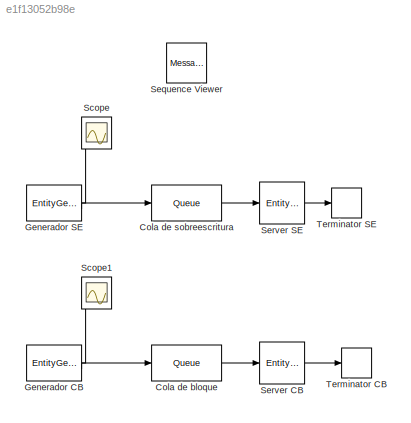
MODEL slx_e1f13052b98e
KIND model
CONFIG AbsTol = auto
CONFIG EnableMultiTasking = off
CONFIG FixedStep = auto
CONFIG MaxStep = auto
CONFIG MinStep = auto
CONFIG RelTol = 1e-3
CONFIG SampleTimeConstraint = Unconstrained
CONFIG SolverName = VariableStepAuto
CONFIG StartTime = 0.0
CONFIG StopTime = 30
BLOCK [Queue] Cola de bloque
  Capacity = 10
  InputPortMap = u0
  InputPortMessageModes = m
  OutputPortMap = o5
  OutputPortMessageModes = m
BLOCK [Queue] Cola de sobreescritura
  Capacity = 10
  InputPortMap = u0
  InputPortMessageModes = m
  OutputPortMap = o5
  OutputPortMessageModes = m
  OverwriteOldest = on
BLOCK [EntityGenerator] Generador CB
  AttributeName = entity
  DataInitialValue = 1
  EntityTypeName = Entity
  GenerateAction = entity = rand();
  NumberEntitiesDeparted = on
  OutputPortMap = o0,o3
  OutputPortMessageModes = n,m
BLOCK [EntityGenerator] Generador SE
  AttributeName = entity
  DataInitialValue = 1
  EntityTypeName = Entity
  GenerateAction = entity = rand();
  NumberEntitiesDeparted = on
  OutputPortMap = o0,o3
  OutputPortMessageModes = n,m
BLOCK [Scope] Scope
  Floating = off
  NumInputPorts = 1
  ScopeSpecificationString = Simulink.scopes.TimeScopeBlockCfg('CurrentConfiguration', extmgr.ConfigurationSet(extmgr.Configuration('Core','General UI',true),extmgr.Configuration('Core','Source UI',true),extmgr.Configuration('Sources','WiredSimulink',true),extmgr.Configuration('Visuals','Time Domain',true),extmgr.Configuration('Tools','Plot Navigation',true),extmgr.Configuration('Tools','Measurements',true)),'Version','2023a'...<+1ch>
BLOCK [Scope] Scope1
  Floating = off
  NumInputPorts = 1
  ScopeSpecificationString = Simulink.scopes.TimeScopeBlockCfg('CurrentConfiguration', extmgr.ConfigurationSet(extmgr.Configuration('Core','General UI',true),extmgr.Configuration('Core','Source UI',true),extmgr.Configuration('Sources','WiredSimulink',true,'DataLoggingVariableName','ScopeData1'),extmgr.Configuration('Visuals','Time Domain',true),extmgr.Configuration('Tools','Plot Navigation',true),extmgr.Configuration('Tools',...<+40ch>
BLOCK [MessageViewer] Sequence Viewer
  History = 1000
  SavedRootId = #
BLOCK [EntityServer] Server CB
  Capacity = 1
  InputPortMap = u2
  InputPortMessageModes = m
  OutputPortMap = o9
  OutputPortMessageModes = m
  ServiceTimeValue = 25.0
BLOCK [EntityServer] Server SE
  Capacity = 1
  InputPortMap = u2
  InputPortMessageModes = m
  OutputPortMap = o9
  OutputPortMessageModes = m
  ServiceTimeValue = 25
BLOCK [EntityTerminator] Terminator CB
  InputPortMap = u0
  InputPortMessageModes = m
  NameLocation = right
BLOCK [EntityTerminator] Terminator SE
  InputPortMap = u0
  InputPortMessageModes = m
  NameLocation = right
LINE Cola de bloque:1 -> Server CB:1
LINE Cola de sobreescritura:1 -> Server SE:1
LINE Generador CB:1 -> Scope1:1
LINE Generador CB:2 -> Cola de bloque:1
LINE Generador SE:1 -> Scope:1
LINE Generador SE:2 -> Cola de sobreescritura:1
LINE Server CB:1 -> Terminator CB:1
LINE Server SE:1 -> Terminator SE:1
